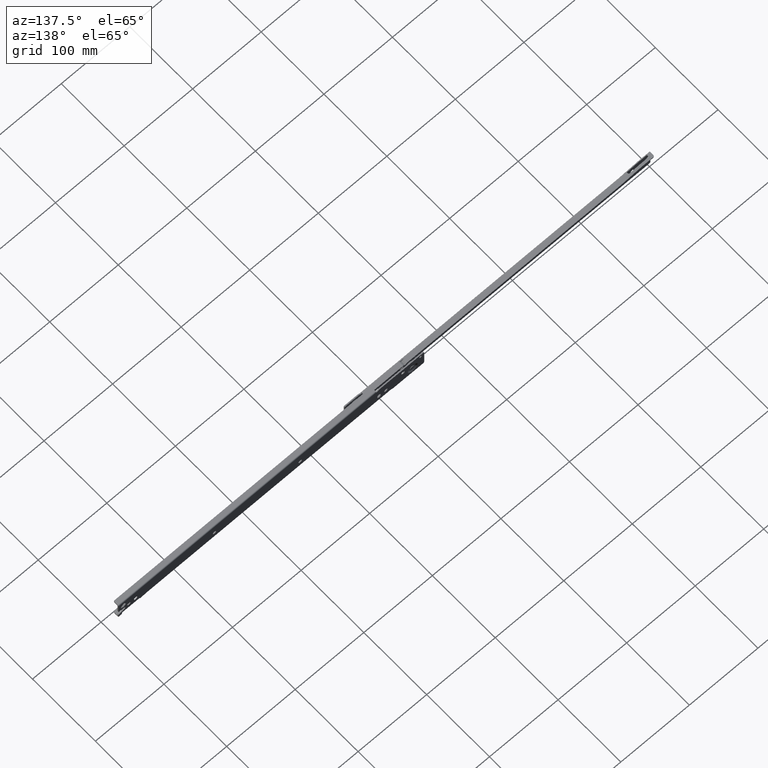
[diagram: clean part render]
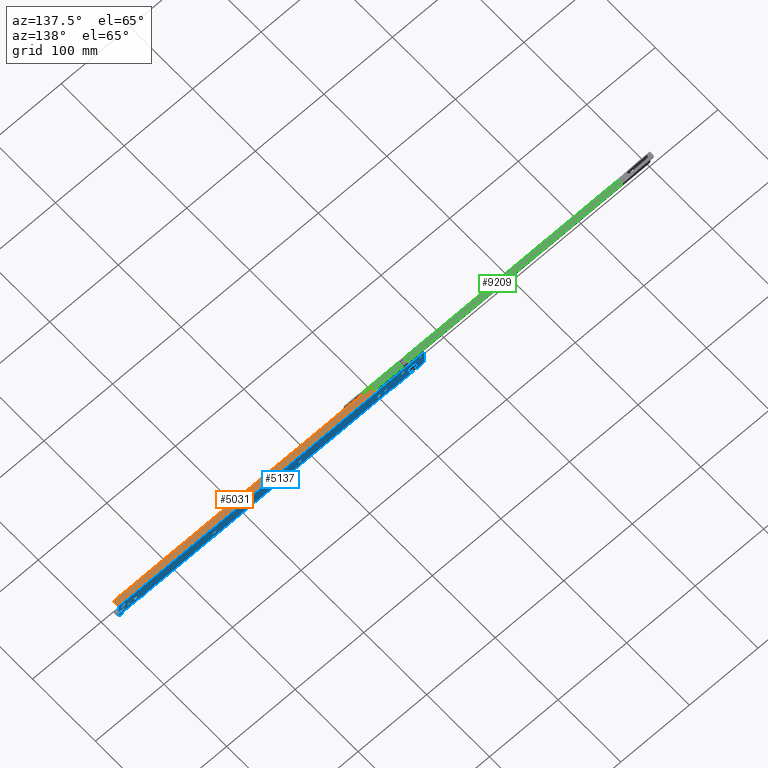
[diagram: same view with three faces highlighted in distinct colors, each labeled with its STEP entity id]
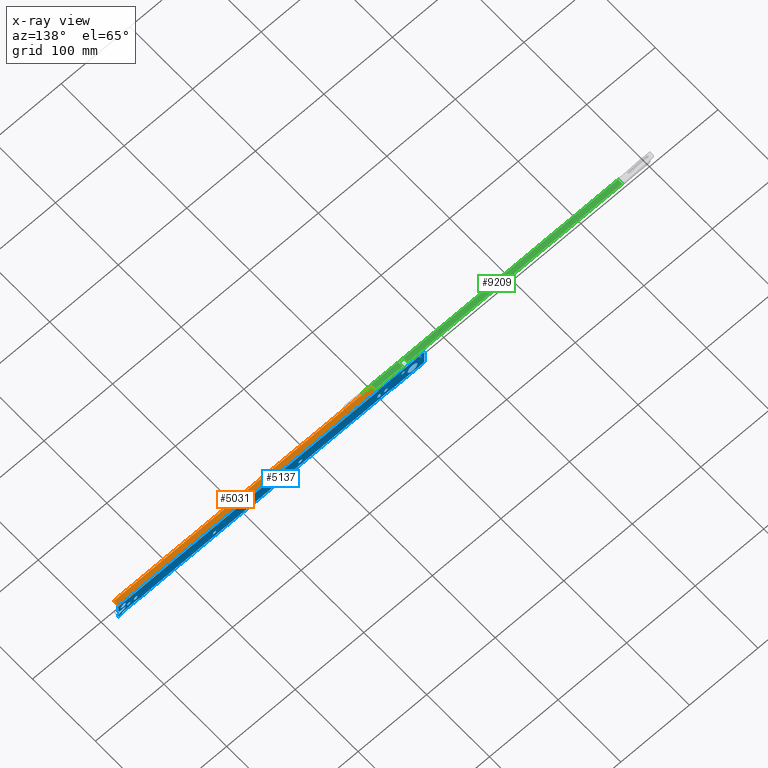
[diagram: x-ray of the same camera — body ghosted, the three highlighted faces saturated]
A machine part, auxiliary view with three faces highlighted in distinct colors.
The next image is the same camera in x-ray (body ghosted, the three faces saturated) — at least one of them is partly hidden behind the body in this view.
Their STEP definitions:

[orange] entity #5031 — the highlighted face is a freeform B-spline surface patch.
#2654=CARTESIAN_POINT('',(125.0,5.999999999999770,27.500000000000000));
#2655=VERTEX_POINT('',#2654);
#2656=CARTESIAN_POINT('',(126.500000000000000,4.499999999999725,27.500000000000000));
#2657=VERTEX_POINT('',#2656);
#2658=CARTESIAN_POINT('',(125.0,5.999999999999770,27.500000000000000));
#2659=CARTESIAN_POINT('',(125.0,4.499999999999769,27.500000000000004));
#2660=CARTESIAN_POINT('',(126.500000000000000,4.499999999999770,27.500000000000000));
#2668=(BOUNDED_CURVE()B_SPLINE_CURVE(2,(#2658,#2659,#2660),.UNSPECIFIED.,.F.,.U.)CURVE()GEOMETRIC_REPRESENTATION_ITEM()QUASI_UNIFORM_CURVE()RATIONAL_B_SPLINE_CURVE((1.0,0.707106781186548,1.0))REPRESENTATION_ITEM(''));
#2669=EDGE_CURVE('',#2655,#2657,#2668,.T.);
#3704=CARTESIAN_POINT('',(125.0,10.999999999999799,27.500000000000000));
#3705=VERTEX_POINT('',#3704);
#3719=CARTESIAN_POINT('',(501.0,10.999999999999799,27.500000000000000));
#3720=VERTEX_POINT('',#3719);
#3721=CARTESIAN_POINT('',(501.0,10.999999999999799,27.500000000000000));
#3722=CARTESIAN_POINT('',(125.0,10.999999999999799,27.500000000000000));
#3723=QUASI_UNIFORM_CURVE('',1,(#3721,#3722),.UNSPECIFIED.,.F.,.U.);
#3724=EDGE_CURVE('',#3720,#3705,#3723,.T.);
#4200=CARTESIAN_POINT('',(501.0,5.999999999999780,27.500000000000000));
#4201=VERTEX_POINT('',#4200);
#4207=CARTESIAN_POINT('',(499.500000000000000,4.499999999999725,27.500000000000000));
#4208=VERTEX_POINT('',#4207);
#4209=CARTESIAN_POINT('',(499.500000000000000,4.499999999999770,27.500000000000000));
#4210=CARTESIAN_POINT('',(500.999999999999890,4.499999999999769,27.500000000000004));
#4211=CARTESIAN_POINT('',(501.0,5.999999999999770,27.500000000000000));
#4219=(BOUNDED_CURVE()B_SPLINE_CURVE(2,(#4209,#4210,#4211),.UNSPECIFIED.,.F.,.U.)CURVE()GEOMETRIC_REPRESENTATION_ITEM()QUASI_UNIFORM_CURVE()RATIONAL_B_SPLINE_CURVE((1.0,0.707106781186548,1.0))REPRESENTATION_ITEM(''));
#4220=EDGE_CURVE('',#4208,#4201,#4219,.T.);
#4514=CARTESIAN_POINT('',(499.500000000000000,4.499999999999725,27.500000000000000));
#4515=CARTESIAN_POINT('',(126.500000000000000,4.499999999999725,27.500000000000000));
#4516=QUASI_UNIFORM_CURVE('',1,(#4514,#4515),.UNSPECIFIED.,.F.,.U.);
#4517=EDGE_CURVE('',#4208,#2657,#4516,.T.);
#4998=CARTESIAN_POINT('',(501.0,5.999999999999780,27.500000000000000));
#4999=CARTESIAN_POINT('',(501.0,10.999999999999799,27.500000000000000));
#5000=QUASI_UNIFORM_CURVE('',1,(#4998,#4999),.UNSPECIFIED.,.F.,.U.);
#5001=EDGE_CURVE('',#4201,#3720,#5000,.T.);
#5014=CARTESIAN_POINT('',(106.218800728761000,4.175325012597982,27.500000000000000));
#5015=CARTESIAN_POINT('',(519.781209356345020,4.175325012597982,27.500000000000000));
#5016=CARTESIAN_POINT('',(106.218800728761000,11.324675161745130,27.500000000000000));
#5017=CARTESIAN_POINT('',(519.781209356345020,11.324675161745130,27.500000000000000));
#5018=B_SPLINE_SURFACE_WITH_KNOTS('',1,1,((#5014,#5016),(#5015,#5017)),.UNSPECIFIED.,.F.,.F.,.U.,(2,2),(2,2),(0.0,413.562408627584090),(0.0,7.149350149147146),.UNSPECIFIED.);
#5019=CARTESIAN_POINT('',(125.0,10.999999999999799,27.500000000000000));
#5020=CARTESIAN_POINT('',(125.0,5.999999999999770,27.500000000000000));
#5021=QUASI_UNIFORM_CURVE('',1,(#5019,#5020),.UNSPECIFIED.,.F.,.U.);
#5022=EDGE_CURVE('',#3705,#2655,#5021,.T.);
#5023=ORIENTED_EDGE('',*,*,#5022,.T.);
#5024=ORIENTED_EDGE('',*,*,#2669,.T.);
#5025=ORIENTED_EDGE('',*,*,#4517,.F.);
#5026=ORIENTED_EDGE('',*,*,#4220,.T.);
#5027=ORIENTED_EDGE('',*,*,#5001,.T.);
#5028=ORIENTED_EDGE('',*,*,#3724,.T.);
#5029=EDGE_LOOP('',(#5023,#5024,#5025,#5026,#5027,#5028));
#5030=FACE_OUTER_BOUND('',#5029,.T.);
#5031=ADVANCED_FACE('',(#5030),#5018,.T.);

[blue] entity #5137 — the highlighted face is a freeform B-spline surface patch.
#721=CARTESIAN_POINT('',(358.618561086909210,12.499999997149510,11.202092773617590));
#722=VERTEX_POINT('',#721);
#723=CARTESIAN_POINT('',(361.0,12.500000000000000,9.100000000000000));
#724=VERTEX_POINT('',#723);
#725=CARTESIAN_POINT('',(358.618561086909210,12.499999997149509,11.202092773617592));
#726=CARTESIAN_POINT('',(358.881523397422710,12.500000000000000,9.100000000000000));
#727=CARTESIAN_POINT('',(361.0,12.500000000000000,9.100000000000000));
#735=(BOUNDED_CURVE()B_SPLINE_CURVE(2,(#725,#726,#727),.UNSPECIFIED.,.F.,.U.)B_SPLINE_CURVE_WITH_KNOTS((3,3),(0.271473931955258,0.500000000000000),.UNSPECIFIED.)CURVE()GEOMETRIC_REPRESENTATION_ITEM()RATIONAL_B_SPLINE_CURVE((0.954005424482848,0.732265057390374,1.0))REPRESENTATION_ITEM(''));
#736=EDGE_CURVE('',#722,#724,#735,.T.);
#777=CARTESIAN_POINT('',(363.399908616968390,12.499999998075721,11.520943698667260));
#778=VERTEX_POINT('',#777);
#784=CARTESIAN_POINT('',(361.0,12.500000000000000,9.100000000000000));
#785=CARTESIAN_POINT('',(363.400000000000090,12.499999999999998,9.100000000000000));
#786=CARTESIAN_POINT('',(363.399999999999980,12.500000000000000,11.500000000000000));
#787=CARTESIAN_POINT('',(363.400000000000030,12.500000000000004,11.510472055426504));
#788=CARTESIAN_POINT('',(363.399908616968450,12.499999998075722,11.520943698667255));
#796=(BOUNDED_CURVE()B_SPLINE_CURVE(2,(#784,#785,#786,#787,#788),.UNSPECIFIED.,.F.,.U.)B_SPLINE_CURVE_WITH_KNOTS((3,2,3),(0.500000000000000,0.750000000000000,0.751539896310218),.UNSPECIFIED.)CURVE()GEOMETRIC_REPRESENTATION_ITEM()RATIONAL_B_SPLINE_CURVE((1.0,0.707106781186547,1.0,0.998195899252245,0.996414023529169))REPRESENTATION_ITEM(''));
#797=EDGE_CURVE('',#724,#778,#796,.T.);
#824=CARTESIAN_POINT('',(361.0,12.500000000000000,13.900000000000000));
#825=VERTEX_POINT('',#824);
#826=CARTESIAN_POINT('',(361.0,12.500000000000000,13.900000000000000));
#827=CARTESIAN_POINT('',(358.599999999999970,12.499999999999998,13.899999999999997));
#828=CARTESIAN_POINT('',(358.600000000000020,12.500000000000000,11.500000000000000));
#829=CARTESIAN_POINT('',(358.600000000000020,12.500000000000004,11.350468152600563));
#830=CARTESIAN_POINT('',(358.618561086909210,12.499999997149512,11.202092773617595));
#838=(BOUNDED_CURVE()B_SPLINE_CURVE(2,(#826,#827,#828,#829,#830),.UNSPECIFIED.,.F.,.U.)B_SPLINE_CURVE_WITH_KNOTS((3,2,3),(0.0,0.250000000000000,0.271473931955258),.UNSPECIFIED.)CURVE()GEOMETRIC_REPRESENTATION_ITEM()RATIONAL_B_SPLINE_CURVE((1.0,0.707106781186547,1.0,0.974841723796173,0.954005424482847))REPRESENTATION_ITEM(''));
#839=EDGE_CURVE('',#825,#722,#838,.T.);
#841=CARTESIAN_POINT('',(363.399908616968450,12.499999998075726,11.520943698667260));
#842=CARTESIAN_POINT('',(363.379146878747690,12.500000000000002,13.899999999999999));
#843=CARTESIAN_POINT('',(361.0,12.500000000000000,13.900000000000000));
#851=(BOUNDED_CURVE()B_SPLINE_CURVE(2,(#841,#842,#843),.UNSPECIFIED.,.F.,.U.)B_SPLINE_CURVE_WITH_KNOTS((3,3),(0.751539896310217,1.0),.UNSPECIFIED.)CURVE()GEOMETRIC_REPRESENTATION_ITEM()RATIONAL_B_SPLINE_CURVE((0.996414023529171,0.708910881934301,1.0))REPRESENTATION_ITEM(''));
#852=EDGE_CURVE('',#778,#825,#851,.T.);
#907=CARTESIAN_POINT('',(233.618561086909210,12.499999997149500,11.202092773617590));
#908=VERTEX_POINT('',#907);
#909=CARTESIAN_POINT('',(236.0,12.500000000000000,9.100000000000000));
#910=VERTEX_POINT('',#909);
#911=CARTESIAN_POINT('',(233.618561086909150,12.499999997149507,11.202092773617586));
#912=CARTESIAN_POINT('',(233.881523397422680,12.499999999999998,9.100000000000000));
#913=CARTESIAN_POINT('',(236.0,12.500000000000000,9.100000000000000));
#921=(BOUNDED_CURVE()B_SPLINE_CURVE(2,(#911,#912,#913),.UNSPECIFIED.,.F.,.U.)B_SPLINE_CURVE_WITH_KNOTS((3,3),(0.271473931955259,0.500000000000000),.UNSPECIFIED.)CURVE()GEOMETRIC_REPRESENTATION_ITEM()RATIONAL_B_SPLINE_CURVE((0.954005424482846,0.732265057390375,1.0))REPRESENTATION_ITEM(''));
#922=EDGE_CURVE('',#908,#910,#921,.T.);
#963=CARTESIAN_POINT('',(238.399908616968390,12.499999998075710,11.520943698667260));
#964=VERTEX_POINT('',#963);
#970=CARTESIAN_POINT('',(236.0,12.500000000000000,9.100000000000000));
#971=CARTESIAN_POINT('',(238.400000000000010,12.499999999999998,9.100000000000000));
#972=CARTESIAN_POINT('',(238.400000000000010,12.500000000000000,11.500000000000000));
#973=CARTESIAN_POINT('',(238.400000000000010,12.500000000000004,11.510472055426504));
#974=CARTESIAN_POINT('',(238.399908616968390,12.499999998075701,11.520943698667255));
#982=(BOUNDED_CURVE()B_SPLINE_CURVE(2,(#970,#971,#972,#973,#974),.UNSPECIFIED.,.F.,.U.)B_SPLINE_CURVE_WITH_KNOTS((3,2,3),(0.500000000000000,0.750000000000000,0.751539896310218),.UNSPECIFIED.)CURVE()GEOMETRIC_REPRESENTATION_ITEM()RATIONAL_B_SPLINE_CURVE((1.0,0.707106781186547,1.0,0.998195899252245,0.996414023529169))REPRESENTATION_ITEM(''));
#983=EDGE_CURVE('',#910,#964,#982,.T.);
#1010=CARTESIAN_POINT('',(236.0,12.500000000000000,13.900000000000000));
#1011=VERTEX_POINT('',#1010);
#1012=CARTESIAN_POINT('',(236.0,12.500000000000000,13.900000000000000));
#1013=CARTESIAN_POINT('',(233.599999999999990,12.499999999999998,13.899999999999997));
#1014=CARTESIAN_POINT('',(233.599999999999990,12.500000000000000,11.500000000000000));
#1015=CARTESIAN_POINT('',(233.599999999999970,12.500000000000000,11.350468152600561));
#1016=CARTESIAN_POINT('',(233.618561086909150,12.499999997149507,11.202092773617586));
#1024=(BOUNDED_CURVE()B_SPLINE_CURVE(2,(#1012,#1013,#1014,#1015,#1016),.UNSPECIFIED.,.F.,.U.)B_SPLINE_CURVE_WITH_KNOTS((3,2,3),(0.0,0.250000000000000,0.271473931955259),.UNSPECIFIED.)CURVE()GEOMETRIC_REPRESENTATION_ITEM()RATIONAL_B_SPLINE_CURVE((1.0,0.707106781186547,1.0,0.974841723796173,0.954005424482846))REPRESENTATION_ITEM(''));
#1025=EDGE_CURVE('',#1011,#908,#1024,.T.);
#1027=CARTESIAN_POINT('',(238.399908616968390,12.499999998075705,11.520943698667260));
#1028=CARTESIAN_POINT('',(238.379146878747690,12.500000000000002,13.899999999999999));
#1029=CARTESIAN_POINT('',(236.0,12.500000000000000,13.900000000000000));
#1037=(BOUNDED_CURVE()B_SPLINE_CURVE(2,(#1027,#1028,#1029),.UNSPECIFIED.,.F.,.U.)B_SPLINE_CURVE_WITH_KNOTS((3,3),(0.751539896310217,1.0),.UNSPECIFIED.)CURVE()GEOMETRIC_REPRESENTATION_ITEM()RATIONAL_B_SPLINE_CURVE((0.996414023529171,0.708910881934301,1.0))REPRESENTATION_ITEM(''));
#1038=EDGE_CURVE('',#964,#1011,#1037,.T.);
#1495=CARTESIAN_POINT('',(108.618561086909100,12.499999997149301,11.202092773617590));
#1496=VERTEX_POINT('',#1495);
#1497=CARTESIAN_POINT('',(111.0,12.499999999999719,9.100000000000025));
#1498=VERTEX_POINT('',#1497);
#1499=CARTESIAN_POINT('',(108.618561086909170,12.499999997149306,11.202092773617590));
#1500=CARTESIAN_POINT('',(108.881523397422750,12.499999999999718,9.100000000000025));
#1501=CARTESIAN_POINT('',(111.0,12.499999999999719,9.100000000000025));
#1509=(BOUNDED_CURVE()B_SPLINE_CURVE(2,(#1499,#1500,#1501),.UNSPECIFIED.,.F.,.U.)B_SPLINE_CURVE_WITH_KNOTS((3,3),(0.271473931955258,0.500000000000000),.UNSPECIFIED.)CURVE()GEOMETRIC_REPRESENTATION_ITEM()RATIONAL_B_SPLINE_CURVE((0.954005424482848,0.732265057390374,1.0))REPRESENTATION_ITEM(''));
#1510=EDGE_CURVE('',#1496,#1498,#1509,.T.);
#1551=CARTESIAN_POINT('',(113.399908616968400,12.499999998075500,11.520943698667260));
#1552=VERTEX_POINT('',#1551);
#1558=CARTESIAN_POINT('',(111.0,12.499999999999719,9.100000000000025));
#1559=CARTESIAN_POINT('',(113.399999999999980,12.499999999999718,9.100000000000025));
#1560=CARTESIAN_POINT('',(113.400000000000010,12.499999999999719,11.500000000000000));
#1561=CARTESIAN_POINT('',(113.399999999999980,12.499999999999721,11.510472055426504));
#1562=CARTESIAN_POINT('',(113.399908616968370,12.499999998075500,11.520943698667255));
#1570=(BOUNDED_CURVE()B_SPLINE_CURVE(2,(#1558,#1559,#1560,#1561,#1562),.UNSPECIFIED.,.F.,.U.)B_SPLINE_CURVE_WITH_KNOTS((3,2,3),(0.500000000000000,0.750000000000000,0.751539896310218),.UNSPECIFIED.)CURVE()GEOMETRIC_REPRESENTATION_ITEM()RATIONAL_B_SPLINE_CURVE((1.0,0.707106781186548,1.0,0.998195899252245,0.996414023529169))REPRESENTATION_ITEM(''));
#1571=EDGE_CURVE('',#1498,#1552,#1570,.T.);
#1598=CARTESIAN_POINT('',(111.0,12.499999999999719,13.899999999999981));
#1599=VERTEX_POINT('',#1598);
#1600=CARTESIAN_POINT('',(111.0,12.499999999999719,13.899999999999981));
#1601=CARTESIAN_POINT('',(108.600000000000020,12.499999999999718,13.899999999999974));
#1602=CARTESIAN_POINT('',(108.599999999999990,12.499999999999719,11.500000000000000));
#1603=CARTESIAN_POINT('',(108.600000000000050,12.499999999999725,11.350468152600563));
#1604=CARTESIAN_POINT('',(108.618561086909200,12.499999997149299,11.202092773617592));
#1612=(BOUNDED_CURVE()B_SPLINE_CURVE(2,(#1600,#1601,#1602,#1603,#1604),.UNSPECIFIED.,.F.,.U.)B_SPLINE_CURVE_WITH_KNOTS((3,2,3),(0.0,0.250000000000000,0.271473931955258),.UNSPECIFIED.)CURVE()GEOMETRIC_REPRESENTATION_ITEM()RATIONAL_B_SPLINE_CURVE((1.0,0.707106781186548,1.0,0.974841723796174,0.954005424482848))REPRESENTATION_ITEM(''));
#1613=EDGE_CURVE('',#1599,#1496,#1612,.T.);
#1615=CARTESIAN_POINT('',(113.399908616968400,12.499999998075502,11.520943698667258));
#1616=CARTESIAN_POINT('',(113.379146878747620,12.499999999999719,13.899999999999974));
#1617=CARTESIAN_POINT('',(111.0,12.499999999999719,13.899999999999981));
#1625=(BOUNDED_CURVE()B_SPLINE_CURVE(2,(#1615,#1616,#1617),.UNSPECIFIED.,.F.,.U.)B_SPLINE_CURVE_WITH_KNOTS((3,3),(0.751539896310217,1.0),.UNSPECIFIED.)CURVE()GEOMETRIC_REPRESENTATION_ITEM()RATIONAL_B_SPLINE_CURVE((0.996414023529171,0.708910881934301,1.0))REPRESENTATION_ITEM(''));
#1626=EDGE_CURVE('',#1552,#1599,#1625,.T.);
#1681=CARTESIAN_POINT('',(83.618561086909111,12.499999997149310,19.202092773617590));
#1682=VERTEX_POINT('',#1681);
#1683=CARTESIAN_POINT('',(86.0,12.499999999999719,17.100000000000001));
#1684=VERTEX_POINT('',#1683);
#1685=CARTESIAN_POINT('',(83.618561086909111,12.499999997149306,19.202092773617586));
#1686=CARTESIAN_POINT('',(83.881523397422711,12.499999999999719,17.099999999999994));
#1687=CARTESIAN_POINT('',(86.0,12.499999999999719,17.100000000000001));
#1695=(BOUNDED_CURVE()B_SPLINE_CURVE(2,(#1685,#1686,#1687),.UNSPECIFIED.,.F.,.U.)B_SPLINE_CURVE_WITH_KNOTS((3,3),(0.271473931955258,0.500000000000000),.UNSPECIFIED.)CURVE()GEOMETRIC_REPRESENTATION_ITEM()RATIONAL_B_SPLINE_CURVE((0.954005424482848,0.732265057390374,1.0))REPRESENTATION_ITEM(''));
#1696=EDGE_CURVE('',#1682,#1684,#1695,.T.);
#1737=CARTESIAN_POINT('',(88.399908616968432,12.499999998075500,19.520943698667260));
#1738=VERTEX_POINT('',#1737);
#1744=CARTESIAN_POINT('',(86.0,12.499999999999719,17.100000000000001));
#1745=CARTESIAN_POINT('',(88.400000000000006,12.499999999999719,17.099999999999998));
#1746=CARTESIAN_POINT('',(88.399999999999991,12.499999999999719,19.500000000000000));
#1747=CARTESIAN_POINT('',(88.400000000000006,12.499999999999721,19.510472055426511));
#1748=CARTESIAN_POINT('',(88.399908616968432,12.499999998075500,19.520943698667253));
#1756=(BOUNDED_CURVE()B_SPLINE_CURVE(2,(#1744,#1745,#1746,#1747,#1748),.UNSPECIFIED.,.F.,.U.)B_SPLINE_CURVE_WITH_KNOTS((3,2,3),(0.500000000000000,0.750000000000000,0.751539896310218),.UNSPECIFIED.)CURVE()GEOMETRIC_REPRESENTATION_ITEM()RATIONAL_B_SPLINE_CURVE((1.0,0.707106781186547,1.0,0.998195899252245,0.996414023529169))REPRESENTATION_ITEM(''));
#1757=EDGE_CURVE('',#1684,#1738,#1756,.T.);
#1784=CARTESIAN_POINT('',(86.0,12.499999999999719,21.899999999999999));
#1785=VERTEX_POINT('',#1784);
#1786=CARTESIAN_POINT('',(86.0,12.499999999999719,21.899999999999999));
#1787=CARTESIAN_POINT('',(83.599999999999994,12.499999999999719,21.900000000000002));
#1788=CARTESIAN_POINT('',(83.599999999999994,12.499999999999719,19.500000000000000));
#1789=CARTESIAN_POINT('',(83.599999999999994,12.499999999999725,19.350468152600563));
#1790=CARTESIAN_POINT('',(83.618561086909111,12.499999997149310,19.202092773617579));
#1798=(BOUNDED_CURVE()B_SPLINE_CURVE(2,(#1786,#1787,#1788,#1789,#1790),.UNSPECIFIED.,.F.,.U.)B_SPLINE_CURVE_WITH_KNOTS((3,2,3),(0.0,0.250000000000000,0.271473931955258),.UNSPECIFIED.)CURVE()GEOMETRIC_REPRESENTATION_ITEM()RATIONAL_B_SPLINE_CURVE((1.0,0.707106781186547,1.0,0.974841723796174,0.954005424482848))REPRESENTATION_ITEM(''));
#1799=EDGE_CURVE('',#1785,#1682,#1798,.T.);
#1801=CARTESIAN_POINT('',(88.399908616968432,12.499999998075506,19.520943698667260));
#1802=CARTESIAN_POINT('',(88.379146878747676,12.499999999999721,21.899999999999999));
#1803=CARTESIAN_POINT('',(86.0,12.499999999999719,21.899999999999999));
#1811=(BOUNDED_CURVE()B_SPLINE_CURVE(2,(#1801,#1802,#1803),.UNSPECIFIED.,.F.,.U.)B_SPLINE_CURVE_WITH_KNOTS((3,3),(0.751539896310217,1.0),.UNSPECIFIED.)CURVE()GEOMETRIC_REPRESENTATION_ITEM()RATIONAL_B_SPLINE_CURVE((0.996414023529171,0.708910881934301,1.0))REPRESENTATION_ITEM(''));
#1812=EDGE_CURVE('',#1738,#1785,#1811,.T.);
#1871=CARTESIAN_POINT('',(58.812233329530933,12.499999999999719,23.656559916263600));
#1872=VERTEX_POINT('',#1871);
#1873=CARTESIAN_POINT('',(60.549999999999997,12.499999999999719,21.699999999999999));
#1874=VERTEX_POINT('',#1873);
#1875=CARTESIAN_POINT('',(58.812233329530926,12.499999999999725,23.656559916263593));
#1876=CARTESIAN_POINT('',(58.800000000000011,12.499999999999714,23.553642215064460));
#1877=CARTESIAN_POINT('',(58.799999999999997,12.499999999999719,23.449999999999999));
#1878=CARTESIAN_POINT('',(58.799999999999997,12.499999999999719,21.699999999999999));
#1879=CARTESIAN_POINT('',(60.549999999999997,12.499999999999719,21.699999999999999));
#1887=(BOUNDED_CURVE()B_SPLINE_CURVE(2,(#1875,#1876,#1877,#1878,#1879),.UNSPECIFIED.,.F.,.U.)B_SPLINE_CURVE_WITH_KNOTS((3,2,3),(0.229562472423634,0.250000000000000,0.500000000000000),.UNSPECIFIED.)CURVE()GEOMETRIC_REPRESENTATION_ITEM()RATIONAL_B_SPLINE_CURVE((0.956026752047500,0.976055947054277,1.0,0.707106781186547,1.0))REPRESENTATION_ITEM(''));
#1888=EDGE_CURVE('',#1872,#1874,#1887,.T.);
#1929=CARTESIAN_POINT('',(62.296735897237284,12.499999999999719,23.343165055797879));
#1930=VERTEX_POINT('',#1929);
#1936=CARTESIAN_POINT('',(60.549999999999997,12.499999999999719,21.699999999999999));
#1937=CARTESIAN_POINT('',(62.196235617054548,12.499999999999723,21.699999999999989));
#1938=CARTESIAN_POINT('',(62.296735897237284,12.499999999999716,23.343165055797883));
#1946=(BOUNDED_CURVE()B_SPLINE_CURVE(2,(#1936,#1937,#1938),.UNSPECIFIED.,.F.,.U.)B_SPLINE_CURVE_WITH_KNOTS((3,3),(0.500000000000000,0.739332962238785),.UNSPECIFIED.)CURVE()GEOMETRIC_REPRESENTATION_ITEM()RATIONAL_B_SPLINE_CURVE((1.0,0.719603993286895,0.976072041666380))REPRESENTATION_ITEM(''));
#1947=EDGE_CURVE('',#1874,#1930,#1946,.T.);
#1970=CARTESIAN_POINT('',(60.549999999999997,12.499999999999719,25.199999999999999));
#1971=VERTEX_POINT('',#1970);
#1972=CARTESIAN_POINT('',(60.549999999999997,12.499999999999719,25.199999999999999));
#1973=CARTESIAN_POINT('',(58.995694589698921,12.499999999999719,25.200000000000003));
#1974=CARTESIAN_POINT('',(58.812233329530919,12.499999999999728,23.656559916263600));
#1982=(BOUNDED_CURVE()B_SPLINE_CURVE(2,(#1972,#1973,#1974),.UNSPECIFIED.,.F.,.U.)B_SPLINE_CURVE_WITH_KNOTS((3,3),(0.0,0.229562472423634),.UNSPECIFIED.)CURVE()GEOMETRIC_REPRESENTATION_ITEM()RATIONAL_B_SPLINE_CURVE((1.0,0.731050834132270,0.956026752047500))REPRESENTATION_ITEM(''));
#1983=EDGE_CURVE('',#1971,#1872,#1982,.T.);
#1985=CARTESIAN_POINT('',(62.296735897237284,12.499999999999721,23.343165055797879));
#1986=CARTESIAN_POINT('',(62.300000000000011,12.499999999999723,23.396532664211311));
#1987=CARTESIAN_POINT('',(62.299999999999997,12.499999999999719,23.449999999999999));
#1988=CARTESIAN_POINT('',(62.300000000000011,12.499999999999719,25.200000000000006));
#1989=CARTESIAN_POINT('',(60.549999999999997,12.499999999999719,25.199999999999999));
#1997=(BOUNDED_CURVE()B_SPLINE_CURVE(2,(#1985,#1986,#1987,#1988,#1989),.UNSPECIFIED.,.F.,.U.)B_SPLINE_CURVE_WITH_KNOTS((3,2,3),(0.739332962238784,0.750000000000000,1.0),.UNSPECIFIED.)CURVE()GEOMETRIC_REPRESENTATION_ITEM()RATIONAL_B_SPLINE_CURVE((0.976072041666378,0.987502787899652,1.0,0.707106781186547,1.0))REPRESENTATION_ITEM(''));
#1998=EDGE_CURVE('',#1930,#1971,#1997,.T.);
#2053=CARTESIAN_POINT('',(483.618561086909210,12.499999997149290,11.202092773617590));
#2054=VERTEX_POINT('',#2053);
#2055=CARTESIAN_POINT('',(486.0,12.499999999999719,9.100000000000025));
#2056=VERTEX_POINT('',#2055);
#2057=CARTESIAN_POINT('',(483.618561086909150,12.499999997149292,11.202092773617585));
#2058=CARTESIAN_POINT('',(483.881523397422710,12.499999999999718,9.100000000000025));
#2059=CARTESIAN_POINT('',(486.0,12.499999999999719,9.100000000000025));
#2067=(BOUNDED_CURVE()B_SPLINE_CURVE(2,(#2057,#2058,#2059),.UNSPECIFIED.,.F.,.U.)B_SPLINE_CURVE_WITH_KNOTS((3,3),(0.271473931955258,0.500000000000000),.UNSPECIFIED.)CURVE()GEOMETRIC_REPRESENTATION_ITEM()RATIONAL_B_SPLINE_CURVE((0.954005424482847,0.732265057390374,1.0))REPRESENTATION_ITEM(''));
#2068=EDGE_CURVE('',#2054,#2056,#2067,.T.);
#2109=CARTESIAN_POINT('',(488.399908616968280,12.499999998075500,11.520943698667260));
#2110=VERTEX_POINT('',#2109);
#2116=CARTESIAN_POINT('',(486.0,12.499999999999719,9.100000000000025));
#2117=CARTESIAN_POINT('',(488.399999999999810,12.499999999999718,9.100000000000025));
#2118=CARTESIAN_POINT('',(488.399999999999920,12.499999999999719,11.500000000000000));
#2119=CARTESIAN_POINT('',(488.399999999999920,12.499999999999721,11.510472055426504));
#2120=CARTESIAN_POINT('',(488.399908616968330,12.499999998075500,11.520943698667255));
#2128=(BOUNDED_CURVE()B_SPLINE_CURVE(2,(#2116,#2117,#2118,#2119,#2120),.UNSPECIFIED.,.F.,.U.)B_SPLINE_CURVE_WITH_KNOTS((3,2,3),(0.500000000000000,0.750000000000000,0.751539896310218),.UNSPECIFIED.)CURVE()GEOMETRIC_REPRESENTATION_ITEM()RATIONAL_B_SPLINE_CURVE((1.0,0.707106781186548,1.0,0.998195899252245,0.996414023529169))REPRESENTATION_ITEM(''));
#2129=EDGE_CURVE('',#2056,#2110,#2128,.T.);
#2156=CARTESIAN_POINT('',(486.0,12.499999999999719,13.899999999999981));
#2157=VERTEX_POINT('',#2156);
#2158=CARTESIAN_POINT('',(486.0,12.499999999999719,13.899999999999981));
#2159=CARTESIAN_POINT('',(483.600000000000020,12.499999999999718,13.899999999999974));
#2160=CARTESIAN_POINT('',(483.600000000000020,12.499999999999719,11.500000000000000));
#2161=CARTESIAN_POINT('',(483.600000000000080,12.499999999999716,11.350468152600563));
#2162=CARTESIAN_POINT('',(483.618561086909150,12.499999997149292,11.202092773617585));
#2170=(BOUNDED_CURVE()B_SPLINE_CURVE(2,(#2158,#2159,#2160,#2161,#2162),.UNSPECIFIED.,.F.,.U.)B_SPLINE_CURVE_WITH_KNOTS((3,2,3),(0.0,0.250000000000000,0.271473931955258),.UNSPECIFIED.)CURVE()GEOMETRIC_REPRESENTATION_ITEM()RATIONAL_B_SPLINE_CURVE((1.0,0.707106781186548,1.0,0.974841723796173,0.954005424482847))REPRESENTATION_ITEM(''));
#2171=EDGE_CURVE('',#2157,#2054,#2170,.T.);
#2173=CARTESIAN_POINT('',(488.399908616968280,12.499999998075506,11.520943698667260));
#2174=CARTESIAN_POINT('',(488.379146878747630,12.499999999999719,13.899999999999977));
#2175=CARTESIAN_POINT('',(486.0,12.499999999999719,13.899999999999981));
#2183=(BOUNDED_CURVE()B_SPLINE_CURVE(2,(#2173,#2174,#2175),.UNSPECIFIED.,.F.,.U.)B_SPLINE_CURVE_WITH_KNOTS((3,3),(0.751539896310217,1.0),.UNSPECIFIED.)CURVE()GEOMETRIC_REPRESENTATION_ITEM()RATIONAL_B_SPLINE_CURVE((0.996414023529171,0.708910881934301,1.0))REPRESENTATION_ITEM(''));
#2184=EDGE_CURVE('',#2110,#2157,#2183,.T.);
#2267=CARTESIAN_POINT('',(76.953429373998233,12.499999999999771,6.225133479462989));
#2268=VERTEX_POINT('',#2267);
#2282=CARTESIAN_POINT('',(72.0,12.499999999999760,4.263932022500369));
#2283=VERTEX_POINT('',#2282);
#2284=CARTESIAN_POINT('',(72.0,12.499999999999760,4.263932022500369));
#2285=CARTESIAN_POINT('',(74.864961987011597,12.499999999999755,4.263932022500369));
#2286=CARTESIAN_POINT('',(76.953429373998233,12.499999999999762,6.225133479462989));
#2294=(BOUNDED_CURVE()B_SPLINE_CURVE(2,(#2284,#2285,#2286),.UNSPECIFIED.,.F.,.U.)B_SPLINE_CURVE_WITH_KNOTS((3,3),(0.500000000000000,0.620259312884512),.UNSPECIFIED.)CURVE()GEOMETRIC_REPRESENTATION_ITEM()RATIONAL_B_SPLINE_CURVE((1.0,0.859107451027845,0.853764031095200))REPRESENTATION_ITEM(''));
#2295=EDGE_CURVE('',#2283,#2268,#2294,.T.);
#2297=CARTESIAN_POINT('',(72.0,12.499999999999760,18.736067977499630));
#2298=VERTEX_POINT('',#2297);
#2299=CARTESIAN_POINT('',(72.0,12.499999999999760,18.736067977499630));
#2300=CARTESIAN_POINT('',(64.763932022500356,12.499999999999758,18.736067977499641));
#2301=CARTESIAN_POINT('',(64.763932022500356,12.499999999999760,11.500000000000000));
#2302=CARTESIAN_POINT('',(64.763932022500356,12.499999999999758,4.263932022500369));
#2303=CARTESIAN_POINT('',(72.0,12.499999999999760,4.263932022500369));
#2311=(BOUNDED_CURVE()B_SPLINE_CURVE(2,(#2299,#2300,#2301,#2302,#2303),.UNSPECIFIED.,.F.,.U.)B_SPLINE_CURVE_WITH_KNOTS((3,2,3),(0.0,0.250000000000000,0.500000000000000),.UNSPECIFIED.)CURVE()GEOMETRIC_REPRESENTATION_ITEM()RATIONAL_B_SPLINE_CURVE((1.0,0.707106781186548,1.0,0.707106781186548,1.0))REPRESENTATION_ITEM(''));
#2312=EDGE_CURVE('',#2298,#2283,#2311,.T.);
#2314=CARTESIAN_POINT('',(77.274866525016407,12.499999999999771,16.453429377267621));
#2315=VERTEX_POINT('',#2314);
#2316=CARTESIAN_POINT('',(77.274866525016407,12.499999999999771,16.453429377267625));
#2317=CARTESIAN_POINT('',(75.131326231418598,12.499999999999764,18.736067977499630));
#2318=CARTESIAN_POINT('',(72.0,12.499999999999760,18.736067977499630));
#2326=(BOUNDED_CURVE()B_SPLINE_CURVE(2,(#2316,#2317,#2318),.UNSPECIFIED.,.F.,.U.)B_SPLINE_CURVE_WITH_KNOTS((3,3),(0.870259312856017,1.0),.UNSPECIFIED.)CURVE()GEOMETRIC_REPRESENTATION_ITEM()RATIONAL_B_SPLINE_CURVE((0.853764031097732,0.847999330125319,1.0))REPRESENTATION_ITEM(''));
#2327=EDGE_CURVE('',#2315,#2298,#2326,.T.);
#2410=CARTESIAN_POINT('',(76.953429373998233,12.499999999999762,6.225133479462989));
#2411=CARTESIAN_POINT('',(79.236067977499630,12.499999999999762,8.368673769392393));
#2412=CARTESIAN_POINT('',(79.236067977499630,12.499999999999760,11.500000000000000));
#2413=CARTESIAN_POINT('',(79.236067977499616,12.499999999999766,14.364961986221456));
#2414=CARTESIAN_POINT('',(77.274866525016407,12.499999999999760,16.453429377267614));
#2422=(BOUNDED_CURVE()B_SPLINE_CURVE(2,(#2410,#2411,#2412,#2413,#2414),.UNSPECIFIED.,.F.,.U.)B_SPLINE_CURVE_WITH_KNOTS((3,2,3),(0.620259312884512,0.750000000000000,0.870259312856018),.UNSPECIFIED.)CURVE()GEOMETRIC_REPRESENTATION_ITEM()RATIONAL_B_SPLINE_CURVE((0.853764031095200,0.847999330158703,1.0,0.859107451061227,0.853764031097732))REPRESENTATION_ITEM(''));
#2423=EDGE_CURVE('',#2268,#2315,#2422,.T.);
#2744=CARTESIAN_POINT('',(118.599999999999990,12.499999999999719,10.500000000000000));
#2745=VERTEX_POINT('',#2744);
#2751=CARTESIAN_POINT('',(118.599999999999990,12.499999999999719,12.500000000000000));
#2752=VERTEX_POINT('',#2751);
#2753=CARTESIAN_POINT('',(118.599999999999990,12.499999999999719,10.500000000000000));
#2754=CARTESIAN_POINT('',(118.599999999999990,12.499999999999719,12.500000000000000));
#2755=QUASI_UNIFORM_CURVE('',1,(#2753,#2754),.UNSPECIFIED.,.F.,.U.);
#2756=EDGE_CURVE('',#2745,#2752,#2755,.T.);
#2791=CARTESIAN_POINT('',(123.400000000000010,12.499999999999719,12.500000000000000));
#2792=VERTEX_POINT('',#2791);
#2816=CARTESIAN_POINT('',(123.400000000000010,12.499999999999719,12.500000000000000));
#2817=CARTESIAN_POINT('',(123.399999999999930,12.499999999999718,14.899999999999975));
#2818=CARTESIAN_POINT('',(121.0,12.499999999999719,14.899999999999981));
#2819=CARTESIAN_POINT('',(118.600000000000020,12.499999999999718,14.899999999999975));
#2820=CARTESIAN_POINT('',(118.599999999999990,12.499999999999719,12.500000000000000));
#2828=(BOUNDED_CURVE()B_SPLINE_CURVE(2,(#2816,#2817,#2818,#2819,#2820),.UNSPECIFIED.,.F.,.U.)B_SPLINE_CURVE_WITH_KNOTS((3,2,3),(0.0,0.500000000000000,1.0),.UNSPECIFIED.)CURVE()GEOMETRIC_REPRESENTATION_ITEM()RATIONAL_B_SPLINE_CURVE((1.0,0.707106781186548,1.0,0.707106781186548,1.0))REPRESENTATION_ITEM(''));
#2829=EDGE_CURVE('',#2792,#2752,#2828,.T.);
#2854=CARTESIAN_POINT('',(123.400000000000010,12.499999999999719,10.500000000000000));
#2855=VERTEX_POINT('',#2854);
#2861=CARTESIAN_POINT('',(118.599999999999990,12.499999999999719,10.500000000000000));
#2862=CARTESIAN_POINT('',(118.600000000000020,12.499999999999718,8.100000000000026));
#2863=CARTESIAN_POINT('',(121.0,12.499999999999719,8.100000000000026));
#2864=CARTESIAN_POINT('',(123.399999999999930,12.499999999999718,8.100000000000026));
#2865=CARTESIAN_POINT('',(123.400000000000010,12.499999999999719,10.500000000000000));
#2873=(BOUNDED_CURVE()B_SPLINE_CURVE(2,(#2861,#2862,#2863,#2864,#2865),.UNSPECIFIED.,.F.,.U.)B_SPLINE_CURVE_WITH_KNOTS((3,2,3),(0.0,0.500000000000000,1.0),.UNSPECIFIED.)CURVE()GEOMETRIC_REPRESENTATION_ITEM()RATIONAL_B_SPLINE_CURVE((1.0,0.707106781186548,1.0,0.707106781186548,1.0))REPRESENTATION_ITEM(''));
#2874=EDGE_CURVE('',#2745,#2855,#2873,.T.);
#2901=CARTESIAN_POINT('',(123.400000000000010,12.499999999999719,12.500000000000000));
#2902=CARTESIAN_POINT('',(123.400000000000010,12.499999999999719,10.500000000000000));
#2903=QUASI_UNIFORM_CURVE('',1,(#2901,#2902),.UNSPECIFIED.,.F.,.U.);
#2904=EDGE_CURVE('',#2792,#2855,#2903,.T.);
#2920=CARTESIAN_POINT('',(125.0,12.499999999999719,26.0));
#2921=VERTEX_POINT('',#2920);
#2922=CARTESIAN_POINT('',(124.0,12.499999999999719,26.0));
#2923=VERTEX_POINT('',#2922);
#2924=CARTESIAN_POINT('',(125.0,12.499999999999719,26.0));
#2925=CARTESIAN_POINT('',(124.0,12.499999999999719,26.0));
#2926=QUASI_UNIFORM_CURVE('',1,(#2924,#2925),.UNSPECIFIED.,.F.,.U.);
#2927=EDGE_CURVE('',#2921,#2923,#2926,.T.);
#2971=CARTESIAN_POINT('',(105.500000000000000,12.499999999999719,3.0));
#2972=VERTEX_POINT('',#2971);
#2999=CARTESIAN_POINT('',(104.500000000000000,12.499999999999719,3.0));
#3000=VERTEX_POINT('',#2999);
#3001=CARTESIAN_POINT('',(104.500000000000000,12.499999999999719,3.0));
#3002=CARTESIAN_POINT('',(105.500000000000000,12.499999999999719,3.0));
#3003=QUASI_UNIFORM_CURVE('',1,(#3001,#3002),.UNSPECIFIED.,.F.,.U.);
#3004=EDGE_CURVE('',#3000,#2972,#3003,.T.);
#3027=CARTESIAN_POINT('',(100.500000000000000,12.499999999999719,1.500000000000000));
#3028=VERTEX_POINT('',#3027);
#3029=CARTESIAN_POINT('',(100.500000000000000,12.499999999999719,1.500000000000000));
#3030=CARTESIAN_POINT('',(104.500000000000000,12.499999999999719,3.0));
#3031=QUASI_UNIFORM_CURVE('',1,(#3029,#3030),.UNSPECIFIED.,.F.,.U.);
#3032=EDGE_CURVE('',#3028,#3000,#3031,.T.);
#3055=CARTESIAN_POINT('',(57.0,12.499999999999719,1.500000000000000));
#3056=VERTEX_POINT('',#3055);
#3057=CARTESIAN_POINT('',(57.0,12.499999999999719,1.500000000000000));
#3058=CARTESIAN_POINT('',(100.500000000000000,12.499999999999719,1.500000000000000));
#3059=QUASI_UNIFORM_CURVE('',1,(#3057,#3058),.UNSPECIFIED.,.F.,.U.);
#3060=EDGE_CURVE('',#3056,#3028,#3059,.T.);
#3092=CARTESIAN_POINT('',(55.0,12.499999999999719,3.500000000000000));
#3093=VERTEX_POINT('',#3092);
#3094=CARTESIAN_POINT('',(55.0,12.499999999999719,3.500000000000000));
#3095=CARTESIAN_POINT('',(55.000000000000007,12.499999999999718,1.500000000000000));
#3096=CARTESIAN_POINT('',(57.0,12.499999999999719,1.500000000000000));
#3104=(BOUNDED_CURVE()B_SPLINE_CURVE(2,(#3094,#3095,#3096),.UNSPECIFIED.,.F.,.U.)CURVE()GEOMETRIC_REPRESENTATION_ITEM()QUASI_UNIFORM_CURVE()RATIONAL_B_SPLINE_CURVE((1.0,0.707106781186548,1.0))REPRESENTATION_ITEM(''));
#3105=EDGE_CURVE('',#3093,#3056,#3104,.T.);
#3136=CARTESIAN_POINT('',(55.0,12.499999999999719,25.500000000000000));
#3137=VERTEX_POINT('',#3136);
#3138=CARTESIAN_POINT('',(55.0,12.499999999999719,25.500000000000000));
#3139=CARTESIAN_POINT('',(55.0,12.499999999999719,3.500000000000000));
#3140=QUASI_UNIFORM_CURVE('',1,(#3138,#3139),.UNSPECIFIED.,.F.,.U.);
#3141=EDGE_CURVE('',#3137,#3093,#3140,.T.);
#3173=CARTESIAN_POINT('',(57.0,12.499999999999719,27.500000000000000));
#3174=VERTEX_POINT('',#3173);
#3175=CARTESIAN_POINT('',(57.0,12.499999999999719,27.500000000000000));
#3176=CARTESIAN_POINT('',(55.000000000000007,12.499999999999718,27.500000000000004));
#3177=CARTESIAN_POINT('',(55.0,12.499999999999719,25.500000000000000));
#3185=(BOUNDED_CURVE()B_SPLINE_CURVE(2,(#3175,#3176,#3177),.UNSPECIFIED.,.F.,.U.)CURVE()GEOMETRIC_REPRESENTATION_ITEM()QUASI_UNIFORM_CURVE()RATIONAL_B_SPLINE_CURVE((1.0,0.707106781186548,1.0))REPRESENTATION_ITEM(''));
#3186=EDGE_CURVE('',#3174,#3137,#3185,.T.);
#3217=CARTESIAN_POINT('',(120.0,12.499999999999719,27.500000000000000));
#3218=VERTEX_POINT('',#3217);
#3219=CARTESIAN_POINT('',(120.0,12.499999999999719,27.500000000000000));
#3220=CARTESIAN_POINT('',(57.0,12.499999999999719,27.500000000000000));
#3221=QUASI_UNIFORM_CURVE('',1,(#3219,#3220),.UNSPECIFIED.,.F.,.U.);
#3222=EDGE_CURVE('',#3218,#3174,#3221,.T.);
#3245=CARTESIAN_POINT('',(124.0,12.499999999999719,26.0));
#3246=CARTESIAN_POINT('',(120.0,12.499999999999719,27.500000000000000));
#3247=QUASI_UNIFORM_CURVE('',1,(#3245,#3246),.UNSPECIFIED.,.F.,.U.);
#3248=EDGE_CURVE('',#2923,#3218,#3247,.T.);
#3279=CARTESIAN_POINT('',(498.202494185347010,12.499999999999719,17.045640091753551));
#3280=VERTEX_POINT('',#3279);
#3309=CARTESIAN_POINT('',(492.545640091754020,12.499999999999760,22.702494185347099));
#3310=VERTEX_POINT('',#3309);
#3326=CARTESIAN_POINT('',(498.202494185347120,12.499999999999760,17.045640091753580));
#3327=CARTESIAN_POINT('',(496.329397377332900,12.499999999999758,20.829397377332583));
#3328=CARTESIAN_POINT('',(492.545640091753910,12.499999999999760,22.702494185346922));
#3336=(BOUNDED_CURVE()B_SPLINE_CURVE(2,(#3326,#3327,#3328),.UNSPECIFIED.,.F.,.U.)CURVE()GEOMETRIC_REPRESENTATION_ITEM()QUASI_UNIFORM_CURVE()RATIONAL_B_SPLINE_CURVE((1.0,0.947417545564864,1.0))REPRESENTATION_ITEM(''));
#3337=EDGE_CURVE('',#3280,#3310,#3336,.T.);
#3546=CARTESIAN_POINT('',(458.066831356245020,12.499999999999760,3.0));
#3547=VERTEX_POINT('',#3546);
#3569=CARTESIAN_POINT('',(458.066831356245020,12.499999999999760,3.0));
#3570=CARTESIAN_POINT('',(105.500000000000000,12.499999999999719,3.0));
#3571=QUASI_UNIFORM_CURVE('',1,(#3569,#3570),.UNSPECIFIED.,.F.,.U.);
#3572=EDGE_CURVE('',#3547,#2972,#3571,.T.);
#3593=CARTESIAN_POINT('',(469.500000000000000,12.499999999999760,1.979181371093275));
#3594=VERTEX_POINT('',#3593);
#3614=CARTESIAN_POINT('',(469.500000000000000,12.499999999999760,1.979181371093275));
#3615=CARTESIAN_POINT('',(458.066831356245020,12.499999999999760,3.0));
#3616=QUASI_UNIFORM_CURVE('',1,(#3614,#3615),.UNSPECIFIED.,.F.,.U.);
#3617=EDGE_CURVE('',#3594,#3547,#3616,.T.);
#3638=CARTESIAN_POINT('',(501.0,12.499999999999719,0.500000000000000));
#3639=VERTEX_POINT('',#3638);
#3660=CARTESIAN_POINT('',(496.0,12.499999999999760,0.500000000000000));
#3661=VERTEX_POINT('',#3660);
#3675=CARTESIAN_POINT('',(501.0,12.499999999999719,0.500000000000000));
#3676=CARTESIAN_POINT('',(496.0,12.499999999999760,0.500000000000000));
#3677=QUASI_UNIFORM_CURVE('',1,(#3675,#3676),.UNSPECIFIED.,.F.,.U.);
#3678=EDGE_CURVE('',#3639,#3661,#3677,.T.);
#3697=CARTESIAN_POINT('',(501.0,12.499999999999719,26.0));
#3698=VERTEX_POINT('',#3697);
#3699=CARTESIAN_POINT('',(125.0,12.499999999999719,26.0));
#3700=CARTESIAN_POINT('',(501.0,12.499999999999719,26.0));
#3701=QUASI_UNIFORM_CURVE('',1,(#3699,#3700),.UNSPECIFIED.,.F.,.U.);
#3702=EDGE_CURVE('',#2921,#3698,#3701,.T.);
#3931=CARTESIAN_POINT('',(494.500000000000000,12.499999999999719,3.500000000000000));
#3932=VERTEX_POINT('',#3931);
#3938=CARTESIAN_POINT('',(496.0,12.499999999999719,2.0));
#3939=VERTEX_POINT('',#3938);
#3940=CARTESIAN_POINT('',(496.0,12.499999999999719,2.0));
#3941=CARTESIAN_POINT('',(496.000000000000060,12.499999999999718,3.499999999999999));
#3942=CARTESIAN_POINT('',(494.500000000000000,12.499999999999719,3.500000000000000));
#3950=(BOUNDED_CURVE()B_SPLINE_CURVE(2,(#3940,#3941,#3942),.UNSPECIFIED.,.F.,.U.)CURVE()GEOMETRIC_REPRESENTATION_ITEM()QUASI_UNIFORM_CURVE()RATIONAL_B_SPLINE_CURVE((1.0,0.707106781186548,1.0))REPRESENTATION_ITEM(''));
#3951=EDGE_CURVE('',#3939,#3932,#3950,.T.);
#3966=CARTESIAN_POINT('',(496.0,12.499999999999760,0.500000000000000));
#3967=CARTESIAN_POINT('',(496.0,12.499999999999719,2.0));
#3968=QUASI_UNIFORM_CURVE('',1,(#3966,#3967),.UNSPECIFIED.,.F.,.U.);
#3969=EDGE_CURVE('',#3661,#3939,#3968,.T.);
#4005=CARTESIAN_POINT('',(469.500000000000000,12.499999999999719,2.0));
#4006=VERTEX_POINT('',#4005);
#4007=CARTESIAN_POINT('',(469.500000000000000,12.499999999999719,2.0));
#4008=CARTESIAN_POINT('',(469.500000000000000,12.499999999999760,1.979181371093275));
#4009=QUASI_UNIFORM_CURVE('',1,(#4007,#4008),.UNSPECIFIED.,.F.,.U.);
#4010=EDGE_CURVE('',#4006,#3594,#4009,.T.);
#4065=CARTESIAN_POINT('',(471.0,12.499999999999719,3.500000000000000));
#4066=VERTEX_POINT('',#4065);
#4067=CARTESIAN_POINT('',(471.0,12.499999999999719,3.500000000000000));
#4068=CARTESIAN_POINT('',(469.500000000000000,12.499999999999718,3.499999999999999));
#4069=CARTESIAN_POINT('',(469.500000000000000,12.499999999999719,2.0));
#4077=(BOUNDED_CURVE()B_SPLINE_CURVE(2,(#4067,#4068,#4069),.UNSPECIFIED.,.F.,.U.)CURVE()GEOMETRIC_REPRESENTATION_ITEM()QUASI_UNIFORM_CURVE()RATIONAL_B_SPLINE_CURVE((1.0,0.707106781186548,1.0))REPRESENTATION_ITEM(''));
#4078=EDGE_CURVE('',#4066,#4006,#4077,.T.);
#4099=CARTESIAN_POINT('',(494.500000000000000,12.499999999999719,3.500000000000000));
#4100=CARTESIAN_POINT('',(471.0,12.499999999999719,3.500000000000000));
#4101=QUASI_UNIFORM_CURVE('',1,(#4099,#4100),.UNSPECIFIED.,.F.,.U.);
#4102=EDGE_CURVE('',#3932,#4066,#4101,.T.);
#4235=CARTESIAN_POINT('',(473.600000000000020,12.499999999999719,12.500000000000000));
#4236=VERTEX_POINT('',#4235);
#4251=CARTESIAN_POINT('',(473.600000000000020,12.499999999999719,10.500000000000000));
#4252=VERTEX_POINT('',#4251);
#4258=CARTESIAN_POINT('',(473.600000000000020,12.499999999999719,10.500000000000000));
#4259=CARTESIAN_POINT('',(473.600000000000020,12.499999999999719,12.500000000000000));
#4260=QUASI_UNIFORM_CURVE('',1,(#4258,#4259),.UNSPECIFIED.,.F.,.U.);
#4261=EDGE_CURVE('',#4252,#4236,#4260,.T.);
#4286=CARTESIAN_POINT('',(478.399999999999980,12.499999999999719,10.500000000000000));
#4287=VERTEX_POINT('',#4286);
#4293=CARTESIAN_POINT('',(473.600000000000020,12.499999999999719,10.500000000000000));
#4294=CARTESIAN_POINT('',(473.599999999999910,12.499999999999718,8.100000000000026));
#4295=CARTESIAN_POINT('',(476.0,12.499999999999719,8.100000000000026));
#4296=CARTESIAN_POINT('',(478.399999999999920,12.499999999999718,8.100000000000026));
#4297=CARTESIAN_POINT('',(478.399999999999920,12.499999999999719,10.500000000000000));
#4305=(BOUNDED_CURVE()B_SPLINE_CURVE(2,(#4293,#4294,#4295,#4296,#4297),.UNSPECIFIED.,.F.,.U.)B_SPLINE_CURVE_WITH_KNOTS((3,2,3),(0.0,0.500000000000000,1.0),.UNSPECIFIED.)CURVE()GEOMETRIC_REPRESENTATION_ITEM()RATIONAL_B_SPLINE_CURVE((1.0,0.707106781186548,1.0,0.707106781186548,1.0))REPRESENTATION_ITEM(''));
#4306=EDGE_CURVE('',#4252,#4287,#4305,.T.);
#4345=CARTESIAN_POINT('',(478.399999999999980,12.499999999999719,12.500000000000000));
#4346=VERTEX_POINT('',#4345);
#4370=CARTESIAN_POINT('',(478.399999999999920,12.499999999999719,12.500000000000000));
#4371=CARTESIAN_POINT('',(478.399999999999920,12.499999999999718,14.899999999999975));
#4372=CARTESIAN_POINT('',(476.0,12.499999999999719,14.899999999999981));
#4373=CARTESIAN_POINT('',(473.599999999999910,12.499999999999718,14.899999999999975));
#4374=CARTESIAN_POINT('',(473.600000000000020,12.499999999999719,12.500000000000000));
#4382=(BOUNDED_CURVE()B_SPLINE_CURVE(2,(#4370,#4371,#4372,#4373,#4374),.UNSPECIFIED.,.F.,.U.)B_SPLINE_CURVE_WITH_KNOTS((3,2,3),(0.0,0.500000000000000,1.0),.UNSPECIFIED.)CURVE()GEOMETRIC_REPRESENTATION_ITEM()RATIONAL_B_SPLINE_CURVE((1.0,0.707106781186548,1.0,0.707106781186548,1.0))REPRESENTATION_ITEM(''));
#4383=EDGE_CURVE('',#4346,#4236,#4382,.T.);
#4400=CARTESIAN_POINT('',(478.399999999999980,12.499999999999719,12.500000000000000));
#4401=CARTESIAN_POINT('',(478.399999999999980,12.499999999999719,10.500000000000000));
#4402=QUASI_UNIFORM_CURVE('',1,(#4400,#4401),.UNSPECIFIED.,.F.,.U.);
#4403=EDGE_CURVE('',#4346,#4287,#4402,.T.);
#4421=CARTESIAN_POINT('',(493.273396778939000,12.499999999999719,14.605558380388720));
#4422=VERTEX_POINT('',#4421);
#4423=CARTESIAN_POINT('',(493.273396778939000,12.499999999999719,14.605558380388720));
#4424=CARTESIAN_POINT('',(498.202494185347010,12.499999999999719,17.045640091753551));
#4425=QUASI_UNIFORM_CURVE('',1,(#4423,#4424),.UNSPECIFIED.,.F.,.U.);
#4426=EDGE_CURVE('',#4422,#3280,#4425,.T.);
#4466=CARTESIAN_POINT('',(490.105558380389030,12.499999999999719,17.773396778938650));
#4467=VERTEX_POINT('',#4466);
#4468=CARTESIAN_POINT('',(493.273396778938720,12.499999999999719,14.605558380388560));
#4469=CARTESIAN_POINT('',(492.224462551275960,12.499999999999725,16.724462551275565));
#4470=CARTESIAN_POINT('',(490.105558380388910,12.499999999999719,17.773396778938508));
#4478=(BOUNDED_CURVE()B_SPLINE_CURVE(2,(#4468,#4469,#4470),.UNSPECIFIED.,.F.,.U.)CURVE()GEOMETRIC_REPRESENTATION_ITEM()QUASI_UNIFORM_CURVE()RATIONAL_B_SPLINE_CURVE((1.0,0.947417541943561,1.0))REPRESENTATION_ITEM(''));
#4479=EDGE_CURVE('',#4422,#4467,#4478,.T.);
#4494=CARTESIAN_POINT('',(492.545640091754020,12.499999999999760,22.702494185347099));
#4495=CARTESIAN_POINT('',(490.105558380389030,12.499999999999719,17.773396778938650));
#4496=QUASI_UNIFORM_CURVE('',1,(#4494,#4495),.UNSPECIFIED.,.F.,.U.);
#4497=EDGE_CURVE('',#3310,#4467,#4496,.T.);
#4740=CARTESIAN_POINT('',(501.0,12.499999999999719,3.885440999999900));
#4741=VERTEX_POINT('',#4740);
#4742=CARTESIAN_POINT('',(501.0,12.499999999999719,3.885440999999900));
#4743=CARTESIAN_POINT('',(501.0,12.499999999999719,0.500000000000000));
#4744=QUASI_UNIFORM_CURVE('',1,(#4742,#4743),.UNSPECIFIED.,.F.,.U.);
#4745=EDGE_CURVE('',#4741,#3639,#4744,.T.);
#4778=CARTESIAN_POINT('',(499.932856000000020,12.499999999999719,5.321629000000000));
#4779=VERTEX_POINT('',#4778);
#4780=CARTESIAN_POINT('',(501.0,12.499999999999719,3.885440999999900));
#4781=CARTESIAN_POINT('',(501.000000000000060,12.499999999999723,4.999999918498069));
#4782=CARTESIAN_POINT('',(499.932856000000020,12.499999999999719,5.321629000000000));
#4790=(BOUNDED_CURVE()B_SPLINE_CURVE(2,(#4780,#4781,#4782),.UNSPECIFIED.,.F.,.U.)CURVE()GEOMETRIC_REPRESENTATION_ITEM()QUASI_UNIFORM_CURVE()RATIONAL_B_SPLINE_CURVE((1.0,0.802673859108725,1.0))REPRESENTATION_ITEM(''));
#4791=EDGE_CURVE('',#4741,#4779,#4790,.T.);
#4822=CARTESIAN_POINT('',(492.422859009517990,12.499999999999719,7.585082697058320));
#4823=VERTEX_POINT('',#4822);
#4824=CARTESIAN_POINT('',(492.422859009517990,12.499999999999719,7.585082697058320));
#4825=CARTESIAN_POINT('',(499.932856000000020,12.499999999999719,5.321629000000000));
#4826=QUASI_UNIFORM_CURVE('',1,(#4824,#4825),.UNSPECIFIED.,.F.,.U.);
#4827=EDGE_CURVE('',#4823,#4779,#4826,.T.);
#4863=CARTESIAN_POINT('',(493.0,12.499999999999719,11.500000000000000));
#4864=VERTEX_POINT('',#4863);
#4865=CARTESIAN_POINT('',(493.0,12.499999999999719,11.500000000000000));
#4866=CARTESIAN_POINT('',(491.273225848600250,12.499999999999718,11.500000000000000));
#4867=CARTESIAN_POINT('',(491.021385003862120,12.499999999999719,9.791689384548558));
#4868=CARTESIAN_POINT('',(490.769544159124050,12.499999999999718,8.083378769097118));
#4869=CARTESIAN_POINT('',(492.422859009517990,12.499999999999719,7.585082697058318));
#4877=(BOUNDED_CURVE()B_SPLINE_CURVE(2,(#4865,#4866,#4867,#4868,#4869),.UNSPECIFIED.,.F.,.U.)B_SPLINE_CURVE_WITH_KNOTS((3,2,3),(0.0,0.500000000000000,1.0),.UNSPECIFIED.)CURVE()GEOMETRIC_REPRESENTATION_ITEM()RATIONAL_B_SPLINE_CURVE((1.0,0.756916340249793,1.0,0.756916340249793,1.0))REPRESENTATION_ITEM(''));
#4878=EDGE_CURVE('',#4864,#4823,#4877,.T.);
#4911=CARTESIAN_POINT('',(499.500000000000000,12.499999999999719,11.499999999999799));
#4912=VERTEX_POINT('',#4911);
#4913=CARTESIAN_POINT('',(499.500000000000000,12.499999999999719,11.499999999999799));
#4914=CARTESIAN_POINT('',(493.0,12.499999999999719,11.500000000000000));
#4915=QUASI_UNIFORM_CURVE('',1,(#4913,#4914),.UNSPECIFIED.,.F.,.U.);
#4916=EDGE_CURVE('',#4912,#4864,#4915,.T.);
#4948=CARTESIAN_POINT('',(501.0,12.499999999999719,12.999999999999799));
#4949=VERTEX_POINT('',#4948);
#4950=CARTESIAN_POINT('',(499.500000000000000,12.499999999999719,11.499999999999799));
#4951=CARTESIAN_POINT('',(500.999999999999890,12.499999999999718,11.499999999999803));
#4952=CARTESIAN_POINT('',(501.0,12.499999999999719,12.999999999999799));
#4960=(BOUNDED_CURVE()B_SPLINE_CURVE(2,(#4950,#4951,#4952),.UNSPECIFIED.,.F.,.U.)CURVE()GEOMETRIC_REPRESENTATION_ITEM()QUASI_UNIFORM_CURVE()RATIONAL_B_SPLINE_CURVE((1.0,0.707106781186548,1.0))REPRESENTATION_ITEM(''));
#4961=EDGE_CURVE('',#4912,#4949,#4960,.T.);
#4992=CARTESIAN_POINT('',(501.0,12.499999999999719,26.0));
#4993=CARTESIAN_POINT('',(501.0,12.499999999999719,12.999999999999799));
#4994=QUASI_UNIFORM_CURVE('',1,(#4992,#4993),.UNSPECIFIED.,.F.,.U.);
#4995=EDGE_CURVE('',#3698,#4949,#4994,.T.);
#5045=CARTESIAN_POINT('',(32.722300864434573,12.499999999999760,28.848649947668761));
#5046=CARTESIAN_POINT('',(523.277711098217650,12.499999999999760,28.848649947668761));
#5047=CARTESIAN_POINT('',(32.722300864434573,12.499999999999760,-0.848650671865194));
#5048=CARTESIAN_POINT('',(523.277711098217650,12.499999999999760,-0.848650671865194));
#5049=B_SPLINE_SURFACE_WITH_KNOTS('',1,1,((#5045,#5047),(#5046,#5048)),.UNSPECIFIED.,.F.,.F.,.U.,(2,2),(2,2),(0.0,490.555410233783110),(0.0,29.697300619533959),.UNSPECIFIED.);
#5050=ORIENTED_EDGE('',*,*,#3572,.T.);
#5051=ORIENTED_EDGE('',*,*,#3004,.F.);
#5052=ORIENTED_EDGE('',*,*,#3032,.F.);
#5053=ORIENTED_EDGE('',*,*,#3060,.F.);
#5054=ORIENTED_EDGE('',*,*,#3105,.F.);
#5055=ORIENTED_EDGE('',*,*,#3141,.F.);
#5056=ORIENTED_EDGE('',*,*,#3186,.F.);
#5057=ORIENTED_EDGE('',*,*,#3222,.F.);
#5058=ORIENTED_EDGE('',*,*,#3248,.F.);
#5059=ORIENTED_EDGE('',*,*,#2927,.F.);
#5060=ORIENTED_EDGE('',*,*,#3702,.T.);
#5061=ORIENTED_EDGE('',*,*,#4995,.T.);
#5062=ORIENTED_EDGE('',*,*,#4961,.F.);
#5063=ORIENTED_EDGE('',*,*,#4916,.T.);
#5064=ORIENTED_EDGE('',*,*,#4878,.T.);
#5065=ORIENTED_EDGE('',*,*,#4827,.T.);
#5066=ORIENTED_EDGE('',*,*,#4791,.F.);
#5067=ORIENTED_EDGE('',*,*,#4745,.T.);
#5068=ORIENTED_EDGE('',*,*,#3678,.T.);
#5069=ORIENTED_EDGE('',*,*,#3969,.T.);
#5070=ORIENTED_EDGE('',*,*,#3951,.T.);
#5071=ORIENTED_EDGE('',*,*,#4102,.T.);
#5072=ORIENTED_EDGE('',*,*,#4078,.T.);
#5073=ORIENTED_EDGE('',*,*,#4010,.T.);
#5074=ORIENTED_EDGE('',*,*,#3617,.T.);
#5075=EDGE_LOOP('',(#5050,#5051,#5052,#5053,#5054,#5055,#5056,#5057,#5058,#5059,#5060,#5061,#5062,#5063,#5064,#5065,#5066,#5067,#5068,#5069,#5070,#5071,#5072,#5073,#5074));
#5076=FACE_OUTER_BOUND('',#5075,.T.);
#5077=ORIENTED_EDGE('',*,*,#2312,.T.);
#5078=ORIENTED_EDGE('',*,*,#2295,.T.);
#5079=ORIENTED_EDGE('',*,*,#2423,.T.);
#5080=ORIENTED_EDGE('',*,*,#2327,.T.);
#5081=EDGE_LOOP('',(#5077,#5078,#5079,#5080));
#5082=FACE_BOUND('',#5081,.T.);
#5083=ORIENTED_EDGE('',*,*,#4383,.T.);
#5084=ORIENTED_EDGE('',*,*,#4261,.F.);
#5085=ORIENTED_EDGE('',*,*,#4306,.T.);
#5086=ORIENTED_EDGE('',*,*,#4403,.F.);
#5087=EDGE_LOOP('',(#5083,#5084,#5085,#5086));
#5088=FACE_BOUND('',#5087,.T.);
#5089=ORIENTED_EDGE('',*,*,#3337,.T.);
#5090=ORIENTED_EDGE('',*,*,#4497,.T.);
#5091=ORIENTED_EDGE('',*,*,#4479,.F.);
#5092=ORIENTED_EDGE('',*,*,#4426,.T.);
#5093=EDGE_LOOP('',(#5089,#5090,#5091,#5092));
#5094=FACE_BOUND('',#5093,.T.);
#5095=ORIENTED_EDGE('',*,*,#2904,.F.);
#5096=ORIENTED_EDGE('',*,*,#2829,.T.);
#5097=ORIENTED_EDGE('',*,*,#2756,.F.);
#5098=ORIENTED_EDGE('',*,*,#2874,.T.);
#5099=EDGE_LOOP('',(#5095,#5096,#5097,#5098));
#5100=FACE_BOUND('',#5099,.T.);
#5101=ORIENTED_EDGE('',*,*,#2129,.T.);
#5102=ORIENTED_EDGE('',*,*,#2184,.T.);
#5103=ORIENTED_EDGE('',*,*,#2171,.T.);
#5104=ORIENTED_EDGE('',*,*,#2068,.T.);
#5105=EDGE_LOOP('',(#5101,#5102,#5103,#5104));
#5106=FACE_BOUND('',#5105,.T.);
#5107=ORIENTED_EDGE('',*,*,#1947,.T.);
#5108=ORIENTED_EDGE('',*,*,#1998,.T.);
#5109=ORIENTED_EDGE('',*,*,#1983,.T.);
#5110=ORIENTED_EDGE('',*,*,#1888,.T.);
#5111=EDGE_LOOP('',(#5107,#5108,#5109,#5110));
#5112=FACE_BOUND('',#5111,.T.);
#5113=ORIENTED_EDGE('',*,*,#1757,.T.);
#5114=ORIENTED_EDGE('',*,*,#1812,.T.);
#5115=ORIENTED_EDGE('',*,*,#1799,.T.);
#5116=ORIENTED_EDGE('',*,*,#1696,.T.);
#5117=EDGE_LOOP('',(#5113,#5114,#5115,#5116));
#5118=FACE_BOUND('',#5117,.T.);
#5119=ORIENTED_EDGE('',*,*,#1571,.T.);
#5120=ORIENTED_EDGE('',*,*,#1626,.T.);
#5121=ORIENTED_EDGE('',*,*,#1613,.T.);
#5122=ORIENTED_EDGE('',*,*,#1510,.T.);
#5123=EDGE_LOOP('',(#5119,#5120,#5121,#5122));
#5124=FACE_BOUND('',#5123,.T.);
#5125=ORIENTED_EDGE('',*,*,#983,.T.);
#5126=ORIENTED_EDGE('',*,*,#1038,.T.);
#5127=ORIENTED_EDGE('',*,*,#1025,.T.);
#5128=ORIENTED_EDGE('',*,*,#922,.T.);
#5129=EDGE_LOOP('',(#5125,#5126,#5127,#5128));
#5130=FACE_BOUND('',#5129,.T.);
#5131=ORIENTED_EDGE('',*,*,#797,.T.);
#5132=ORIENTED_EDGE('',*,*,#852,.T.);
#5133=ORIENTED_EDGE('',*,*,#839,.T.);
#5134=ORIENTED_EDGE('',*,*,#736,.T.);
#5135=EDGE_LOOP('',(#5131,#5132,#5133,#5134));
#5136=FACE_BOUND('',#5135,.T.);
#5137=ADVANCED_FACE('',(#5076,#5082,#5088,#5094,#5100,#5106,#5112,#5118,#5124,#5130,#5136),#5049,.T.);

[green] entity #9209 — the highlighted face is a freeform B-spline surface patch.
#7442=CARTESIAN_POINT('',(421.0,6.0,24.0));
#7443=VERTEX_POINT('',#7442);
#7444=CARTESIAN_POINT('',(419.0,8.0,24.0));
#7445=VERTEX_POINT('',#7444);
#7446=CARTESIAN_POINT('',(421.0,6.0,24.0));
#7447=CARTESIAN_POINT('',(421.0,8.0,23.999999999999996));
#7448=CARTESIAN_POINT('',(419.0,8.0,24.0));
#7456=(BOUNDED_CURVE()B_SPLINE_CURVE(2,(#7446,#7447,#7448),.UNSPECIFIED.,.F.,.U.)CURVE()GEOMETRIC_REPRESENTATION_ITEM()QUASI_UNIFORM_CURVE()RATIONAL_B_SPLINE_CURVE((1.0,0.707106781186548,1.0))REPRESENTATION_ITEM(''));
#7457=EDGE_CURVE('',#7443,#7445,#7456,.T.);
#7503=CARTESIAN_POINT('',(360.056778559224030,8.0,24.0));
#7504=VERTEX_POINT('',#7503);
#7520=CARTESIAN_POINT('',(360.056778559224030,2.0,24.0));
#7521=VERTEX_POINT('',#7520);
#7522=CARTESIAN_POINT('',(360.056778559224030,2.0,24.0));
#7523=CARTESIAN_POINT('',(360.056778559224030,8.0,24.0));
#7524=QUASI_UNIFORM_CURVE('',1,(#7522,#7523),.UNSPECIFIED.,.F.,.U.);
#7525=EDGE_CURVE('',#7521,#7504,#7524,.T.);
#7566=CARTESIAN_POINT('',(367.507881440775980,8.0,24.0));
#7567=VERTEX_POINT('',#7566);
#7588=CARTESIAN_POINT('',(367.507881440775980,2.0,24.0));
#7589=VERTEX_POINT('',#7588);
#7603=CARTESIAN_POINT('',(367.507881440775980,8.0,24.0));
#7604=CARTESIAN_POINT('',(367.507881440775980,2.0,24.0));
#7605=QUASI_UNIFORM_CURVE('',1,(#7603,#7604),.UNSPECIFIED.,.F.,.U.);
#7606=EDGE_CURVE('',#7567,#7589,#7605,.T.);
#8502=CARTESIAN_POINT('',(421.0,1.500000000000000,24.0));
#8503=VERTEX_POINT('',#8502);
#8517=CARTESIAN_POINT('',(47.0,1.500000000000055,24.0));
#8518=VERTEX_POINT('',#8517);
#8519=CARTESIAN_POINT('',(47.0,1.500000000000055,24.0));
#8520=CARTESIAN_POINT('',(421.0,1.500000000000000,24.0));
#8521=QUASI_UNIFORM_CURVE('',1,(#8519,#8520),.UNSPECIFIED.,.F.,.U.);
#8522=EDGE_CURVE('',#8518,#8503,#8521,.T.);
#9037=CARTESIAN_POINT('',(47.0,8.0,24.0));
#9038=VERTEX_POINT('',#9037);
#9039=CARTESIAN_POINT('',(47.0,8.0,24.0));
#9040=CARTESIAN_POINT('',(47.0,1.500000000000055,24.0));
#9041=QUASI_UNIFORM_CURVE('',1,(#9039,#9040),.UNSPECIFIED.,.F.,.U.);
#9042=EDGE_CURVE('',#9038,#8518,#9041,.T.);
#9137=CARTESIAN_POINT('',(421.0,1.500000000000000,24.0));
#9138=CARTESIAN_POINT('',(421.0,6.0,24.0));
#9139=QUASI_UNIFORM_CURVE('',1,(#9137,#9138),.UNSPECIFIED.,.F.,.U.);
#9140=EDGE_CURVE('',#8503,#7443,#9139,.T.);
#9156=CARTESIAN_POINT('',(360.056778559224030,8.0,24.0));
#9157=CARTESIAN_POINT('',(47.0,8.0,24.0));
#9158=QUASI_UNIFORM_CURVE('',1,(#9156,#9157),.UNSPECIFIED.,.F.,.U.);
#9159=EDGE_CURVE('',#7504,#9038,#9158,.T.);
#9166=CARTESIAN_POINT('',(419.0,8.0,24.0));
#9167=CARTESIAN_POINT('',(367.507881440775980,8.0,24.0));
#9168=QUASI_UNIFORM_CURVE('',1,(#9166,#9167),.UNSPECIFIED.,.F.,.U.);
#9169=EDGE_CURVE('',#7445,#7567,#9168,.T.);
#9189=CARTESIAN_POINT('',(28.318700724884561,1.175325012598261,24.0));
#9190=CARTESIAN_POINT('',(439.681309306577190,1.175325012598261,24.0));
#9191=CARTESIAN_POINT('',(28.318700724884561,8.324675161745324,24.0));
#9192=CARTESIAN_POINT('',(439.681309306577190,8.324675161745324,24.0));
#9193=B_SPLINE_SURFACE_WITH_KNOTS('',1,1,((#9189,#9191),(#9190,#9192)),.UNSPECIFIED.,.F.,.F.,.U.,(2,2),(2,2),(0.0,411.362608581692710),(0.0,7.149350149147063),.UNSPECIFIED.);
#9194=ORIENTED_EDGE('',*,*,#9140,.T.);
#9195=ORIENTED_EDGE('',*,*,#7457,.T.);
#9196=ORIENTED_EDGE('',*,*,#9169,.T.);
#9197=ORIENTED_EDGE('',*,*,#7606,.T.);
#9198=CARTESIAN_POINT('',(360.056778559224030,2.0,24.0));
#9199=CARTESIAN_POINT('',(367.507881440775980,2.0,24.0));
#9200=QUASI_UNIFORM_CURVE('',1,(#9198,#9199),.UNSPECIFIED.,.F.,.U.);
#9201=EDGE_CURVE('',#7521,#7589,#9200,.T.);
#9202=ORIENTED_EDGE('',*,*,#9201,.F.);
#9203=ORIENTED_EDGE('',*,*,#7525,.T.);
#9204=ORIENTED_EDGE('',*,*,#9159,.T.);
#9205=ORIENTED_EDGE('',*,*,#9042,.T.);
#9206=ORIENTED_EDGE('',*,*,#8522,.T.);
#9207=EDGE_LOOP('',(#9194,#9195,#9196,#9197,#9202,#9203,#9204,#9205,#9206));
#9208=FACE_OUTER_BOUND('',#9207,.T.);
#9209=ADVANCED_FACE('',(#9208),#9193,.T.);